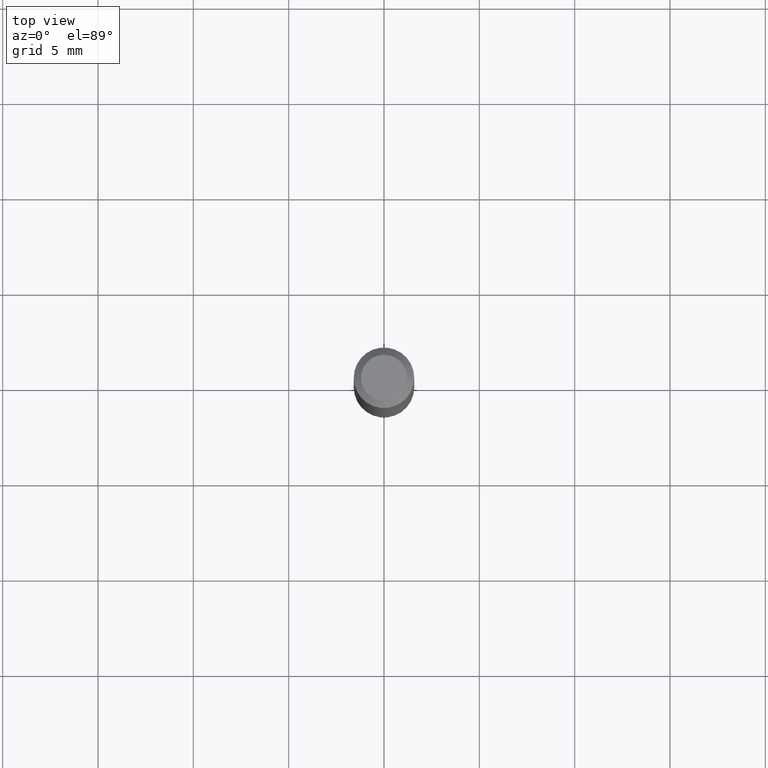
[diagram: clean part render]
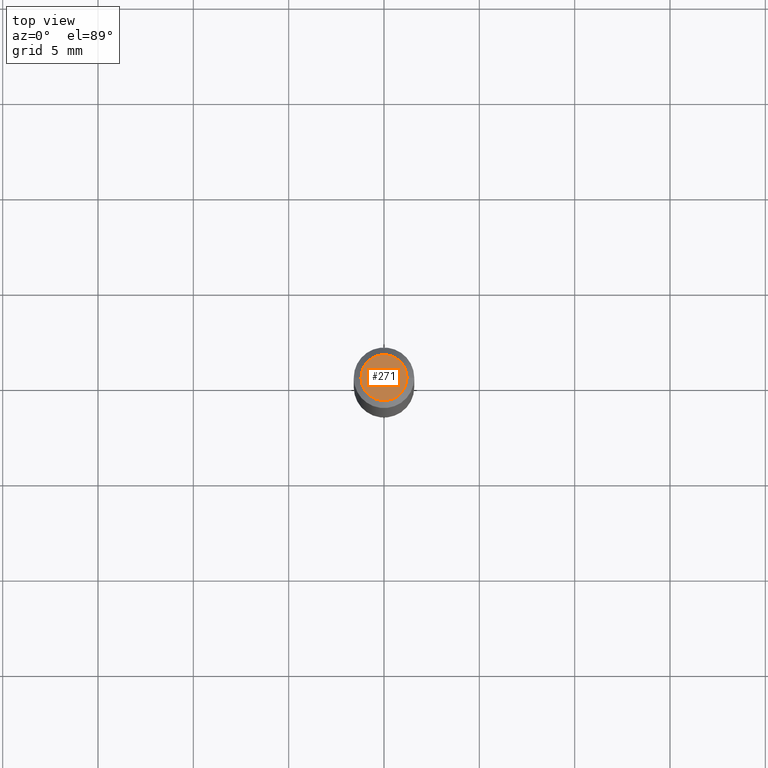
[diagram: same view with one face highlighted and labeled with its STEP entity id]
A machine part, top view. The second image highlights one B-rep face of the part: STEP entity #271.
In plain terms, the highlighted planar face has unit normal (0, -0, -1).
Its self-contained STEP definition (entity closure, byte-faithful):
#49 = DIRECTION ( 'NONE',  ( -2.445468806185136597E-29, 3.491481338843145583E-15, 1.000000000000000000 ) ) ;
#51 = ORIENTED_EDGE ( 'NONE', *, *, #514, .T. ) ;
#61 = DIRECTION ( 'NONE',  ( 1.000000000000000000, -6.982962677686266711E-15, 4.852736867747365086E-29 ) ) ;
#69 = FACE_OUTER_BOUND ( 'NONE', #266, .T. ) ;
#74 = EDGE_CURVE ( 'NONE', #214, #367, #215, .T. ) ;
#88 = AXIS2_PLACEMENT_3D ( 'NONE', #123, #99, #104 ) ;
#99 = DIRECTION ( 'NONE',  ( 2.438088387897960049E-29, -3.491481338843145188E-15, -1.000000000000000000 ) ) ;
#104 = DIRECTION ( 'NONE',  ( -1.000000000000000000, 6.982962677686265922E-15, -4.876176775795935793E-29 ) ) ;
#123 = CARTESIAN_POINT ( 'NONE',  ( 3.316907271900976589E-16, 0.04750000000000000749, -2.925296391183627249E-17 ) ) ;
#133 = CARTESIAN_POINT ( 'NONE',  ( -6.680649051745406845E-45, 9.538196290434862081E-31, 2.731847993664263218E-16 ) ) ;
#204 = AXIS2_PLACEMENT_3D ( 'NONE', #133, #49, #408 ) ;
#214 = VERTEX_POINT ( 'NONE', #258 ) ;
#215 = CIRCLE ( 'NONE', #475, 0.04750000000000000749 ) ;
#258 = CARTESIAN_POINT ( 'NONE',  ( 0.04750000000000000749, -4.035134999187568762E-16, 2.731847993664288856E-16 ) ) ;
#266 = EDGE_LOOP ( 'NONE', ( #51, #462 ) ) ;
#271 = ADVANCED_FACE ( 'NONE', ( #69 ), #340, .F. ) ;
#340 = PLANE ( 'NONE',  #88 ) ;
#366 = CIRCLE ( 'NONE', #204, 0.04750000000000000749 ) ;
#367 = VERTEX_POINT ( 'NONE', #393 ) ;
#390 = CARTESIAN_POINT ( 'NONE',  ( -6.680649051745406845E-45, 9.538196290434862081E-31, 2.731847993664263218E-16 ) ) ;
#393 = CARTESIAN_POINT ( 'NONE',  ( -0.04750000000000000749, 3.578768372314221353E-16, 2.731847993664239060E-16 ) ) ;
#408 = DIRECTION ( 'NONE',  ( 1.000000000000000000, -6.982962677686266711E-15, 4.852736867747365086E-29 ) ) ;
#420 = DIRECTION ( 'NONE',  ( -2.445468806185136597E-29, 3.491481338843145583E-15, 1.000000000000000000 ) ) ;
#462 = ORIENTED_EDGE ( 'NONE', *, *, #74, .T. ) ;
#475 = AXIS2_PLACEMENT_3D ( 'NONE', #390, #420, #61 ) ;
#514 = EDGE_CURVE ( 'NONE', #367, #214, #366, .T. ) ;